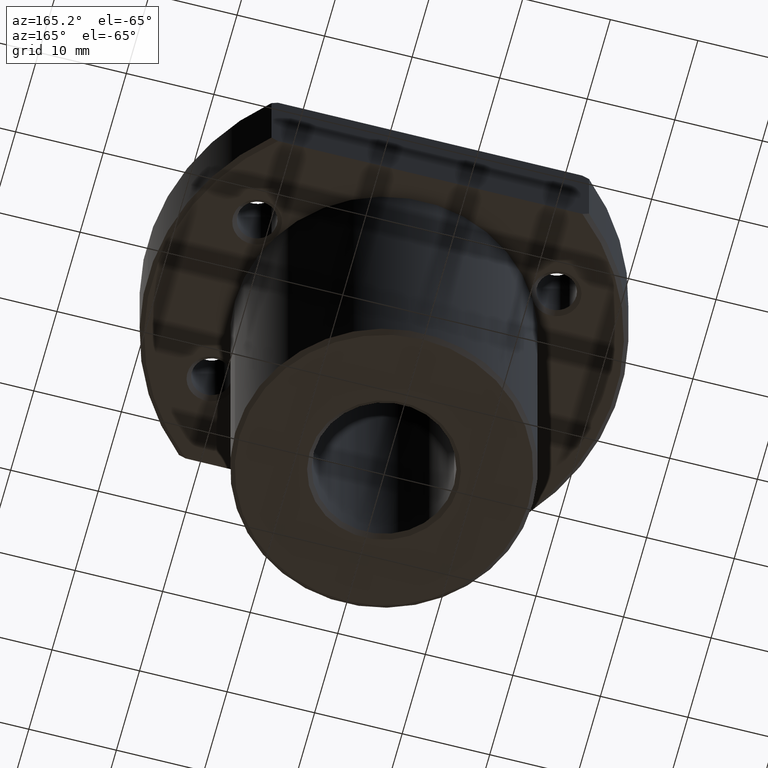
[diagram: clean part render]
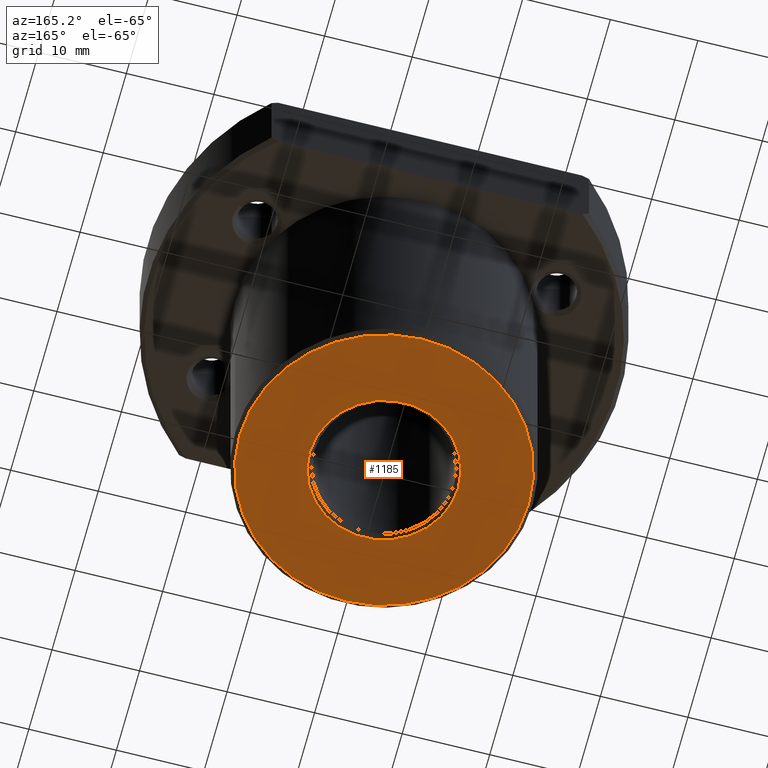
[diagram: same view with one face highlighted and labeled with its STEP entity id]
A machine part, auxiliary view. The second image highlights one B-rep face of the part: STEP entity #1185.
In plain terms, the highlighted planar face has unit normal (0, 0, 1).
Its self-contained STEP definition (entity closure, byte-faithful):
#1081=AXIS2_PLACEMENT_3D('Circle Axis2P3D',#1079,#1080,$) ;
#1105=AXIS2_PLACEMENT_3D('Circle Axis2P3D',#1103,#1104,$) ;
#1161=AXIS2_PLACEMENT_3D('Plane Axis2P3D',#1158,#1159,#1160) ;
#1169=AXIS2_PLACEMENT_3D('Circle Axis2P3D',#1167,#1168,$) ;
#1178=AXIS2_PLACEMENT_3D('Circle Axis2P3D',#1176,#1177,$) ;
#1076=CARTESIAN_POINT('Vertex',(16.5,-4.48810910311E-015,0.)) ;
#1079=CARTESIAN_POINT('Axis2P3D Location',(3.5527136788E-015,-8.07793566946E-028,-1.13686837722E-013)) ;
#1083=CARTESIAN_POINT('Vertex',(-16.5,-9.12436646239E-009,0.)) ;
#1103=CARTESIAN_POINT('Axis2P3D Location',(-8.881784197E-016,1.7763568394E-015,-2.84217094304E-014)) ;
#1158=CARTESIAN_POINT('Axis2P3D Location',(0.,0.,0.)) ;
#1167=CARTESIAN_POINT('Axis2P3D Location',(1.7763568394E-015,4.4408920985E-016,0.)) ;
#1171=CARTESIAN_POINT('Vertex',(-8.5,1.51718430416E-007,0.)) ;
#1173=CARTESIAN_POINT('Vertex',(8.5,-1.63774159165E-015,0.)) ;
#1176=CARTESIAN_POINT('Axis2P3D Location',(0.,0.,0.)) ;
#1080=DIRECTION('Axis2P3D Direction',(1.04984707068E-030,7.1054273576E-015,1.)) ;
#1104=DIRECTION('Axis2P3D Direction',(-6.65335203659E-015,-1.35611369853E-014,1.)) ;
#1159=DIRECTION('Axis2P3D Direction',(0.,0.,1.)) ;
#1160=DIRECTION('Axis2P3D XDirection',(1.,0.,0.)) ;
#1168=DIRECTION('Axis2P3D Direction',(0.,0.,1.)) ;
#1177=DIRECTION('Axis2P3D Direction',(0.,0.,1.)) ;
#1164=ORIENTED_EDGE('',*,*,#1107,.F.) ;
#1165=ORIENTED_EDGE('',*,*,#1085,.F.) ;
#1182=ORIENTED_EDGE('',*,*,#1175,.T.) ;
#1183=ORIENTED_EDGE('',*,*,#1180,.T.) ;
#1184=FACE_BOUND('',#1181,.T.) ;
#1185=ADVANCED_FACE('',(#1166,#1184),#1162,.F.) ;
#1082=CIRCLE('generated circle',#1081,16.5) ;
#1106=CIRCLE('generated circle',#1105,16.5) ;
#1170=CIRCLE('generated circle',#1169,8.5) ;
#1179=CIRCLE('generated circle',#1178,8.5) ;
#1085=EDGE_CURVE('',#1077,#1084,#1082,.T.) ;
#1107=EDGE_CURVE('',#1084,#1077,#1106,.T.) ;
#1175=EDGE_CURVE('',#1172,#1174,#1170,.T.) ;
#1180=EDGE_CURVE('',#1174,#1172,#1179,.T.) ;
#1163=EDGE_LOOP('',(#1164,#1165)) ;
#1181=EDGE_LOOP('',(#1182,#1183)) ;
#1166=FACE_OUTER_BOUND('',#1163,.T.) ;
#1162=PLANE('Plane',#1161) ;
#1077=VERTEX_POINT('',#1076) ;
#1084=VERTEX_POINT('',#1083) ;
#1172=VERTEX_POINT('',#1171) ;
#1174=VERTEX_POINT('',#1173) ;